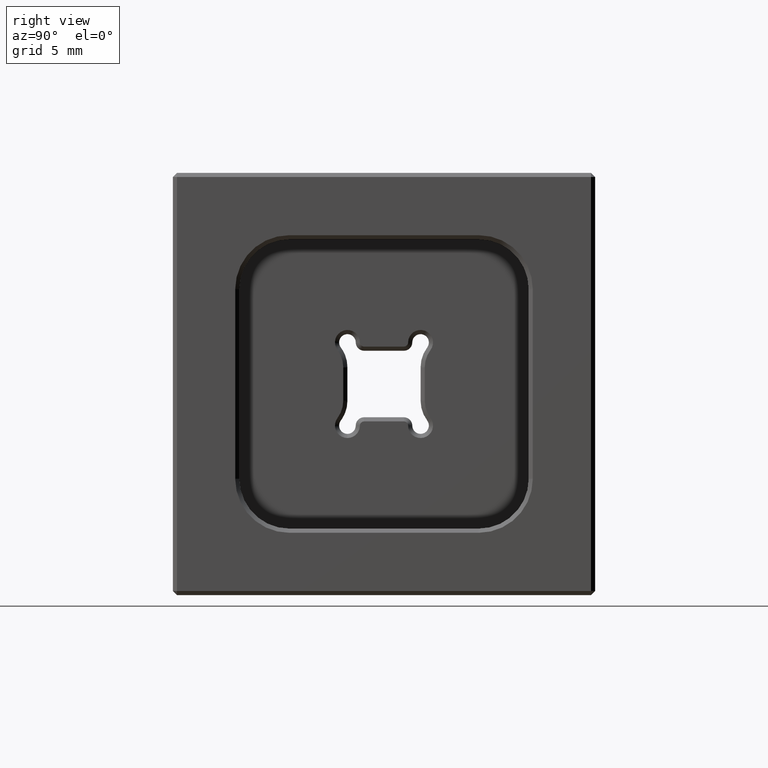
[diagram: clean part render]
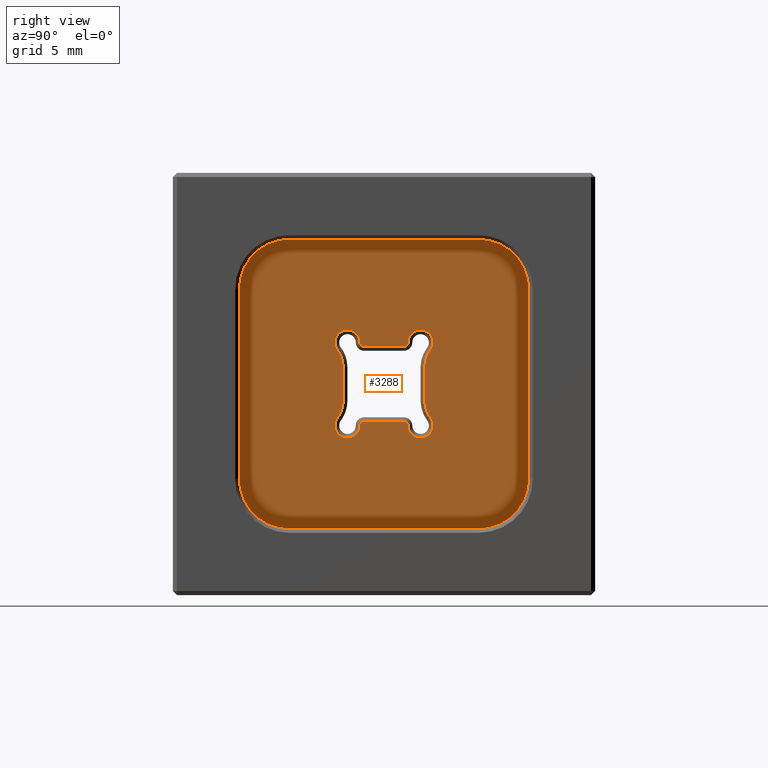
[diagram: same view with one face highlighted and labeled with its STEP entity id]
A machine part, right view. The second image highlights one B-rep face of the part: STEP entity #3288.
In plain terms, the highlighted planar face has unit normal (1, 0, 0).
Its self-contained STEP definition (entity closure, byte-faithful):
#8 = VERTEX_POINT ( 'NONE', #5404 ) ;
#50 = DIRECTION ( 'NONE',  ( -1.000000000000000000, -0.000000000000000000, -0.000000000000000000 ) ) ;
#73 = VERTEX_POINT ( 'NONE', #1613 ) ;
#93 = VERTEX_POINT ( 'NONE', #590 ) ;
#100 = EDGE_CURVE ( 'NONE', #8, #5152, #2017, .T. ) ;
#145 = DIRECTION ( 'NONE',  ( -1.000000000000000000, -0.000000000000000000, -0.000000000000000000 ) ) ;
#158 = CIRCLE ( 'NONE', #4592, 0.7500000000000002220 ) ;
#181 = AXIS2_PLACEMENT_3D ( 'NONE', #779, #4181, #1230 ) ;
#205 = CARTESIAN_POINT ( 'NONE',  ( 4.699999999999995737, -5.699999999999998401, 8.699999999999997513 ) ) ;
#209 = ORIENTED_EDGE ( 'NONE', *, *, #2404, .T. ) ;
#236 = CARTESIAN_POINT ( 'NONE',  ( 4.699999999999995737, 8.699999999999997513, 8.699999999999997513 ) ) ;
#245 = VERTEX_POINT ( 'NONE', #5748 ) ;
#330 = CARTESIAN_POINT ( 'NONE',  ( 4.699999999999995737, 1.200000000000001066, 2.249999999999999556 ) ) ;
#418 = ORIENTED_EDGE ( 'NONE', *, *, #4123, .T. ) ;
#443 = CIRCLE ( 'NONE', #2667, 1.749999999999999556 ) ;
#454 = CARTESIAN_POINT ( 'NONE',  ( 4.699999999999995737, 8.699999999999997513, -5.699999999999998401 ) ) ;
#464 = LINE ( 'NONE', #330, #4939 ) ;
#466 = VERTEX_POINT ( 'NONE', #1703 ) ;
#480 = ORIENTED_EDGE ( 'NONE', *, *, #4427, .T. ) ;
#483 = AXIS2_PLACEMENT_3D ( 'NONE', #1463, #50, #3957 ) ;
#484 = PLANE ( 'NONE',  #3834 ) ;
#488 = EDGE_CURVE ( 'NONE', #708, #4338, #443, .T. ) ;
#490 = CARTESIAN_POINT ( 'NONE',  ( 4.699999999999995737, 8.699999999999997513, 8.699999999999997513 ) ) ;
#514 = CARTESIAN_POINT ( 'NONE',  ( 4.699999999999995737, -8.699999999999997513, -5.699999999999998401 ) ) ;
#542 = CARTESIAN_POINT ( 'NONE',  ( 4.699999999999995737, 5.699999999999997513, 5.699999999999997513 ) ) ;
#557 = ORIENTED_EDGE ( 'NONE', *, *, #2823, .T. ) ;
#562 = EDGE_CURVE ( 'NONE', #4338, #1939, #6331, .T. ) ;
#569 = AXIS2_PLACEMENT_3D ( 'NONE', #4687, #2647, #5644 ) ;
#590 = CARTESIAN_POINT ( 'NONE',  ( 4.699999999999995737, -1.450000000000000844, 2.500000000000000888 ) ) ;
#602 = EDGE_CURVE ( 'NONE', #2980, #2792, #1087, .T. ) ;
#612 = VECTOR ( 'NONE', #4516, 1000.000000000000000 ) ;
#615 = VECTOR ( 'NONE', #3883, 1000.000000000000000 ) ;
#618 = DIRECTION ( 'NONE',  ( 1.000000000000000000, 0.000000000000000000, 0.000000000000000000 ) ) ;
#650 = VERTEX_POINT ( 'NONE', #6061 ) ;
#708 = VERTEX_POINT ( 'NONE', #1086 ) ;
#709 = DIRECTION ( 'NONE',  ( 1.000000000000000000, 0.000000000000000000, 0.000000000000000000 ) ) ;
#738 = ORIENTED_EDGE ( 'NONE', *, *, #2223, .T. ) ;
#757 = DIRECTION ( 'NONE',  ( 0.000000000000000000, 0.000000000000000000, -1.000000000000000000 ) ) ;
#760 = CARTESIAN_POINT ( 'NONE',  ( 4.699999999999995737, -1.200000000000001066, 2.500000000000001332 ) ) ;
#777 = EDGE_CURVE ( 'NONE', #5152, #5446, #5003, .T. ) ;
#779 = CARTESIAN_POINT ( 'NONE',  ( 4.699999999999995737, 1.200000000000001066, 2.500000000000001332 ) ) ;
#805 = ORIENTED_EDGE ( 'NONE', *, *, #562, .T. ) ;
#857 = DIRECTION ( 'NONE',  ( 1.000000000000000000, 0.000000000000000000, 0.000000000000000000 ) ) ;
#901 = CARTESIAN_POINT ( 'NONE',  ( 4.699999999999995737, -4.200000000000000178, -0.9999999999999993339 ) ) ;
#951 = DIRECTION ( 'NONE',  ( 0.000000000000000000, 0.000000000000000000, -1.000000000000000000 ) ) ;
#961 = CARTESIAN_POINT ( 'NONE',  ( 4.699999999999995737, 1.200000000000001066, -2.500000000000001332 ) ) ;
#976 = CARTESIAN_POINT ( 'NONE',  ( 4.699999999999995737, 2.450000000000001066, -0.9999999999999993339 ) ) ;
#993 = CIRCLE ( 'NONE', #3314, 3.000000000000000000 ) ;
#1086 = CARTESIAN_POINT ( 'NONE',  ( 4.699999999999995737, -2.800000000000000711, -2.049999999999999822 ) ) ;
#1087 = CIRCLE ( 'NONE', #2234, 1.749999999999999778 ) ;
#1118 = CIRCLE ( 'NONE', #5376, 3.000000000000000888 ) ;
#1168 = LINE ( 'NONE', #5829, #4244 ) ;
#1216 = DIRECTION ( 'NONE',  ( 0.000000000000000000, 0.000000000000000000, -1.000000000000000000 ) ) ;
#1230 = DIRECTION ( 'NONE',  ( 0.000000000000000000, 0.000000000000000000, -1.000000000000000000 ) ) ;
#1264 = DIRECTION ( 'NONE',  ( 0.000000000000000000, -1.156482317317871133E-15, -1.000000000000000000 ) ) ;
#1332 = VERTEX_POINT ( 'NONE', #3618 ) ;
#1341 = ORIENTED_EDGE ( 'NONE', *, *, #3451, .T. ) ;
#1408 = VECTOR ( 'NONE', #5269, 1000.000000000000000 ) ;
#1463 = CARTESIAN_POINT ( 'NONE',  ( 4.699999999999995737, 2.200000000000001066, -2.500000000000000000 ) ) ;
#1473 = CARTESIAN_POINT ( 'NONE',  ( 4.699999999999995737, -2.450000000000001066, 0.9999999999999991118 ) ) ;
#1481 = CARTESIAN_POINT ( 'NONE',  ( 4.699999999999995737, 0.000000000000000000, 0.000000000000000000 ) ) ;
#1492 = EDGE_CURVE ( 'NONE', #466, #5241, #6239, .T. ) ;
#1613 = CARTESIAN_POINT ( 'NONE',  ( 4.699999999999995737, 1.200000000000001066, -2.250000000000000444 ) ) ;
#1691 = ORIENTED_EDGE ( 'NONE', *, *, #3352, .T. ) ;
#1703 = CARTESIAN_POINT ( 'NONE',  ( 4.699999999999995737, -1.200000000000001066, -2.250000000000000444 ) ) ;
#1713 = CARTESIAN_POINT ( 'NONE',  ( 4.699999999999995737, 4.200000000000000178, -0.9999999999999993339 ) ) ;
#1724 = VERTEX_POINT ( 'NONE', #4430 ) ;
#1743 = CARTESIAN_POINT ( 'NONE',  ( 4.699999999999995737, 2.800000000000000711, 2.049999999999999378 ) ) ;
#1750 = DIRECTION ( 'NONE',  ( -1.000000000000000000, -0.000000000000000000, -0.000000000000000000 ) ) ;
#1862 = CARTESIAN_POINT ( 'NONE',  ( 4.699999999999995737, 2.200000000000001066, -3.250000000000000444 ) ) ;
#1882 = DIRECTION ( 'NONE',  ( 0.000000000000000000, 0.000000000000000000, -1.000000000000000000 ) ) ;
#1885 = DIRECTION ( 'NONE',  ( 0.000000000000000000, 0.000000000000000000, -1.000000000000000000 ) ) ;
#1888 = ORIENTED_EDGE ( 'NONE', *, *, #777, .T. ) ;
#1917 = AXIS2_PLACEMENT_3D ( 'NONE', #2690, #709, #4172 ) ;
#1939 = VERTEX_POINT ( 'NONE', #6084 ) ;
#1983 = DIRECTION ( 'NONE',  ( 1.000000000000000000, 0.000000000000000000, 0.000000000000000000 ) ) ;
#2017 = CIRCLE ( 'NONE', #3039, 3.000000000000000000 ) ;
#2029 = ORIENTED_EDGE ( 'NONE', *, *, #1492, .T. ) ;
#2041 = VECTOR ( 'NONE', #4918, 1000.000000000000000 ) ;
#2052 = EDGE_CURVE ( 'NONE', #1332, #2980, #158, .T. ) ;
#2147 = AXIS2_PLACEMENT_3D ( 'NONE', #3188, #145, #5607 ) ;
#2169 = CARTESIAN_POINT ( 'NONE',  ( 4.699999999999995737, 2.450000000000001066, 0.9999999999999991118 ) ) ;
#2223 = EDGE_CURVE ( 'NONE', #4332, #5901, #1118, .T. ) ;
#2234 = AXIS2_PLACEMENT_3D ( 'NONE', #2513, #3507, #4005 ) ;
#2295 = CARTESIAN_POINT ( 'NONE',  ( 4.699999999999995737, -5.699999999999998401, -5.699999999999999289 ) ) ;
#2404 = EDGE_CURVE ( 'NONE', #73, #466, #2574, .T. ) ;
#2471 = EDGE_CURVE ( 'NONE', #4198, #1724, #4183, .T. ) ;
#2512 = CARTESIAN_POINT ( 'NONE',  ( 4.699999999999995737, -2.200000000000001066, -2.500000000000000000 ) ) ;
#2513 = CARTESIAN_POINT ( 'NONE',  ( 4.699999999999995737, 4.200000000000000178, 0.9999999999999993339 ) ) ;
#2564 = DIRECTION ( 'NONE',  ( 0.000000000000000000, 0.000000000000000000, -1.000000000000000000 ) ) ;
#2571 = CIRCLE ( 'NONE', #6387, 1.749999999999999556 ) ;
#2574 = LINE ( 'NONE', #4450, #3575 ) ;
#2588 = ORIENTED_EDGE ( 'NONE', *, *, #5921, .T. ) ;
#2611 = CIRCLE ( 'NONE', #569, 1.749999999999999778 ) ;
#2627 = CARTESIAN_POINT ( 'NONE',  ( 4.699999999999995737, -1.450000000000001510, -2.500000000000000888 ) ) ;
#2647 = DIRECTION ( 'NONE',  ( 1.000000000000000000, 0.000000000000000000, 0.000000000000000000 ) ) ;
#2667 = AXIS2_PLACEMENT_3D ( 'NONE', #901, #4326, #1882 ) ;
#2690 = CARTESIAN_POINT ( 'NONE',  ( 4.699999999999995737, -1.200000000000001066, -2.500000000000001332 ) ) ;
#2742 = ORIENTED_EDGE ( 'NONE', *, *, #4472, .T. ) ;
#2761 = CARTESIAN_POINT ( 'NONE',  ( 4.699999999999995737, 2.200000000000001066, 2.500000000000000000 ) ) ;
#2792 = VERTEX_POINT ( 'NONE', #2169 ) ;
#2818 = ORIENTED_EDGE ( 'NONE', *, *, #4396, .T. ) ;
#2823 = EDGE_CURVE ( 'NONE', #5923, #93, #4510, .T. ) ;
#2849 = CARTESIAN_POINT ( 'NONE',  ( 4.699999999999995737, 2.450000000000000622, -0.9999999999999993339 ) ) ;
#2907 = ORIENTED_EDGE ( 'NONE', *, *, #602, .T. ) ;
#2908 = CARTESIAN_POINT ( 'NONE',  ( 4.699999999999995737, -2.800000000000000711, 2.049999999999999378 ) ) ;
#2934 = CARTESIAN_POINT ( 'NONE',  ( 4.699999999999995737, 2.200000000000001066, -2.500000000000000000 ) ) ;
#2960 = FACE_BOUND ( 'NONE', #3172, .T. ) ;
#2980 = VERTEX_POINT ( 'NONE', #1743 ) ;
#3039 = AXIS2_PLACEMENT_3D ( 'NONE', #542, #4016, #6024 ) ;
#3051 = CARTESIAN_POINT ( 'NONE',  ( 4.699999999999995737, 5.699999999999997513, -5.699999999999998401 ) ) ;
#3070 = CARTESIAN_POINT ( 'NONE',  ( 4.699999999999995737, 1.450000000000001732, -2.500000000000001332 ) ) ;
#3103 = EDGE_CURVE ( 'NONE', #245, #5264, #464, .T. ) ;
#3171 = EDGE_CURVE ( 'NONE', #1724, #4332, #1168, .T. ) ;
#3172 = EDGE_LOOP ( 'NONE', ( #3242, #5048, #480, #5786, #2907, #418, #2818, #3906, #2588, #1341, #209, #2029, #5109, #1691, #5017, #805, #4124, #557 ) ) ;
#3188 = CARTESIAN_POINT ( 'NONE',  ( 4.699999999999995737, -2.200000000000001066, 2.500000000000000000 ) ) ;
#3242 = ORIENTED_EDGE ( 'NONE', *, *, #6320, .T. ) ;
#3258 = EDGE_LOOP ( 'NONE', ( #2742, #4482, #5364, #738, #6283, #4182, #1888, #3841 ) ) ;
#3288 = ADVANCED_FACE ( 'NONE', ( #2960, #4562 ), #484, .T. ) ;
#3314 = AXIS2_PLACEMENT_3D ( 'NONE', #6349, #3391, #1885 ) ;
#3352 = EDGE_CURVE ( 'NONE', #4625, #708, #5713, .T. ) ;
#3391 = DIRECTION ( 'NONE',  ( 1.000000000000000000, 0.000000000000000000, 0.000000000000000000 ) ) ;
#3400 = DIRECTION ( 'NONE',  ( 0.000000000000000000, 1.000000000000000000, 0.000000000000000000 ) ) ;
#3430 = LINE ( 'NONE', #976, #2041 ) ;
#3451 = EDGE_CURVE ( 'NONE', #5257, #73, #5757, .T. ) ;
#3498 = DIRECTION ( 'NONE',  ( 0.000000000000000000, 0.000000000000000000, -1.000000000000000000 ) ) ;
#3507 = DIRECTION ( 'NONE',  ( 1.000000000000000000, 0.000000000000000000, 0.000000000000000000 ) ) ;
#3528 = DIRECTION ( 'NONE',  ( -1.000000000000000000, -0.000000000000000000, -0.000000000000000000 ) ) ;
#3575 = VECTOR ( 'NONE', #5470, 1000.000000000000000 ) ;
#3582 = VERTEX_POINT ( 'NONE', #2849 ) ;
#3618 = CARTESIAN_POINT ( 'NONE',  ( 4.699999999999995737, 1.450000000000000844, 2.500000000000000888 ) ) ;
#3692 = CARTESIAN_POINT ( 'NONE',  ( 4.699999999999995737, -2.200000000000001066, -2.500000000000000000 ) ) ;
#3723 = EDGE_CURVE ( 'NONE', #5241, #4625, #4520, .T. ) ;
#3769 = DIRECTION ( 'NONE',  ( 1.000000000000000000, 0.000000000000000000, 0.000000000000000000 ) ) ;
#3834 = AXIS2_PLACEMENT_3D ( 'NONE', #1481, #1983, #3498 ) ;
#3841 = ORIENTED_EDGE ( 'NONE', *, *, #5672, .T. ) ;
#3883 = DIRECTION ( 'NONE',  ( 0.000000000000000000, 0.000000000000000000, 1.000000000000000000 ) ) ;
#3906 = ORIENTED_EDGE ( 'NONE', *, *, #5180, .T. ) ;
#3918 = DIRECTION ( 'NONE',  ( -1.000000000000000000, -0.000000000000000000, -0.000000000000000000 ) ) ;
#3942 = CARTESIAN_POINT ( 'NONE',  ( 4.699999999999995737, -2.200000000000001066, -3.250000000000000444 ) ) ;
#3943 = VERTEX_POINT ( 'NONE', #6016 ) ;
#3957 = DIRECTION ( 'NONE',  ( 0.000000000000000000, 1.734723475976806503E-15, -1.000000000000000000 ) ) ;
#3961 = CARTESIAN_POINT ( 'NONE',  ( 4.699999999999995737, -2.450000000000000622, -0.9999999999999993339 ) ) ;
#4005 = DIRECTION ( 'NONE',  ( 0.000000000000000000, 0.000000000000000000, -1.000000000000000000 ) ) ;
#4016 = DIRECTION ( 'NONE',  ( 1.000000000000000000, 0.000000000000000000, 0.000000000000000000 ) ) ;
#4123 = EDGE_CURVE ( 'NONE', #2792, #3582, #3430, .T. ) ;
#4124 = ORIENTED_EDGE ( 'NONE', *, *, #5371, .T. ) ;
#4164 = DIRECTION ( 'NONE',  ( 1.000000000000000000, 0.000000000000000000, 0.000000000000000000 ) ) ;
#4172 = DIRECTION ( 'NONE',  ( 0.000000000000000000, 0.000000000000000000, -1.000000000000000000 ) ) ;
#4181 = DIRECTION ( 'NONE',  ( 1.000000000000000000, 0.000000000000000000, 0.000000000000000000 ) ) ;
#4182 = ORIENTED_EDGE ( 'NONE', *, *, #100, .T. ) ;
#4183 = CIRCLE ( 'NONE', #5327, 3.000000000000000000 ) ;
#4198 = VERTEX_POINT ( 'NONE', #514 ) ;
#4236 = DIRECTION ( 'NONE',  ( 0.000000000000000000, 0.000000000000000000, -1.000000000000000000 ) ) ;
#4244 = VECTOR ( 'NONE', #3400, 1000.000000000000000 ) ;
#4260 = AXIS2_PLACEMENT_3D ( 'NONE', #961, #6379, #5369 ) ;
#4326 = DIRECTION ( 'NONE',  ( 1.000000000000000000, 0.000000000000000000, 0.000000000000000000 ) ) ;
#4332 = VERTEX_POINT ( 'NONE', #5722 ) ;
#4338 = VERTEX_POINT ( 'NONE', #3961 ) ;
#4396 = EDGE_CURVE ( 'NONE', #3582, #650, #2571, .T. ) ;
#4427 = EDGE_CURVE ( 'NONE', #5264, #1332, #5344, .T. ) ;
#4430 = CARTESIAN_POINT ( 'NONE',  ( 4.699999999999995737, -5.699999999999998401, -8.699999999999999289 ) ) ;
#4450 = CARTESIAN_POINT ( 'NONE',  ( 4.699999999999995737, -1.200000000000001066, -2.250000000000000444 ) ) ;
#4472 = EDGE_CURVE ( 'NONE', #3943, #4198, #5505, .T. ) ;
#4482 = ORIENTED_EDGE ( 'NONE', *, *, #2471, .T. ) ;
#4510 = CIRCLE ( 'NONE', #2147, 0.7500000000000002220 ) ;
#4516 = DIRECTION ( 'NONE',  ( 0.000000000000000000, 0.000000000000000000, 1.000000000000000000 ) ) ;
#4520 = CIRCLE ( 'NONE', #5201, 0.7500000000000002220 ) ;
#4521 = DIRECTION ( 'NONE',  ( 0.000000000000000000, 0.000000000000000000, -1.000000000000000000 ) ) ;
#4551 = VECTOR ( 'NONE', #5652, 1000.000000000000000 ) ;
#4562 = FACE_OUTER_BOUND ( 'NONE', #3258, .T. ) ;
#4592 = AXIS2_PLACEMENT_3D ( 'NONE', #2761, #1750, #4236 ) ;
#4625 = VERTEX_POINT ( 'NONE', #3942 ) ;
#4687 = CARTESIAN_POINT ( 'NONE',  ( 4.699999999999995737, -4.200000000000000178, 0.9999999999999993339 ) ) ;
#4706 = AXIS2_PLACEMENT_3D ( 'NONE', #2934, #3918, #951 ) ;
#4708 = EDGE_CURVE ( 'NONE', #5901, #8, #5477, .T. ) ;
#4862 = CARTESIAN_POINT ( 'NONE',  ( 4.699999999999995737, -8.699999999999997513, 8.699999999999997513 ) ) ;
#4918 = DIRECTION ( 'NONE',  ( 0.000000000000000000, 0.000000000000000000, -1.000000000000000000 ) ) ;
#4939 = VECTOR ( 'NONE', #6174, 1000.000000000000000 ) ;
#4981 = CIRCLE ( 'NONE', #4706, 0.7500000000000002220 ) ;
#5003 = LINE ( 'NONE', #236, #4551 ) ;
#5017 = ORIENTED_EDGE ( 'NONE', *, *, #488, .T. ) ;
#5048 = ORIENTED_EDGE ( 'NONE', *, *, #3103, .T. ) ;
#5109 = ORIENTED_EDGE ( 'NONE', *, *, #3723, .T. ) ;
#5138 = CIRCLE ( 'NONE', #483, 0.7500000000000002220 ) ;
#5152 = VERTEX_POINT ( 'NONE', #5976 ) ;
#5180 = EDGE_CURVE ( 'NONE', #650, #5893, #5138, .T. ) ;
#5201 = AXIS2_PLACEMENT_3D ( 'NONE', #3692, #6117, #1264 ) ;
#5231 = DIRECTION ( 'NONE',  ( 0.000000000000000000, 0.000000000000000000, -1.000000000000000000 ) ) ;
#5241 = VERTEX_POINT ( 'NONE', #2627 ) ;
#5257 = VERTEX_POINT ( 'NONE', #3070 ) ;
#5264 = VERTEX_POINT ( 'NONE', #5562 ) ;
#5269 = DIRECTION ( 'NONE',  ( 0.000000000000000000, 0.000000000000000000, -1.000000000000000000 ) ) ;
#5327 = AXIS2_PLACEMENT_3D ( 'NONE', #2295, #857, #5231 ) ;
#5344 = CIRCLE ( 'NONE', #181, 0.2500000000000002220 ) ;
#5364 = ORIENTED_EDGE ( 'NONE', *, *, #3171, .T. ) ;
#5369 = DIRECTION ( 'NONE',  ( 0.000000000000000000, 0.000000000000000000, -1.000000000000000000 ) ) ;
#5371 = EDGE_CURVE ( 'NONE', #1939, #5923, #2611, .T. ) ;
#5376 = AXIS2_PLACEMENT_3D ( 'NONE', #3051, #618, #2564 ) ;
#5404 = CARTESIAN_POINT ( 'NONE',  ( 4.699999999999995737, 8.699999999999997513, 5.699999999999997513 ) ) ;
#5409 = AXIS2_PLACEMENT_3D ( 'NONE', #760, #4164, #1216 ) ;
#5446 = VERTEX_POINT ( 'NONE', #205 ) ;
#5470 = DIRECTION ( 'NONE',  ( 0.000000000000000000, -1.000000000000000000, 0.000000000000000000 ) ) ;
#5477 = LINE ( 'NONE', #490, #612 ) ;
#5505 = LINE ( 'NONE', #4862, #1408 ) ;
#5562 = CARTESIAN_POINT ( 'NONE',  ( 4.699999999999995737, 1.200000000000001066, 2.250000000000001332 ) ) ;
#5607 = DIRECTION ( 'NONE',  ( 0.000000000000000000, 0.000000000000000000, -1.000000000000000000 ) ) ;
#5644 = DIRECTION ( 'NONE',  ( 0.000000000000000000, 0.000000000000000000, -1.000000000000000000 ) ) ;
#5652 = DIRECTION ( 'NONE',  ( 0.000000000000000000, -1.000000000000000000, 0.000000000000000000 ) ) ;
#5672 = EDGE_CURVE ( 'NONE', #5446, #3943, #993, .T. ) ;
#5713 = CIRCLE ( 'NONE', #5714, 0.7500000000000002220 ) ;
#5714 = AXIS2_PLACEMENT_3D ( 'NONE', #2512, #3528, #4521 ) ;
#5722 = CARTESIAN_POINT ( 'NONE',  ( 4.699999999999995737, 5.699999999999997513, -8.699999999999999289 ) ) ;
#5748 = CARTESIAN_POINT ( 'NONE',  ( 4.699999999999995737, -1.200000000000001066, 2.250000000000001332 ) ) ;
#5757 = CIRCLE ( 'NONE', #4260, 0.2500000000000006661 ) ;
#5786 = ORIENTED_EDGE ( 'NONE', *, *, #2052, .T. ) ;
#5829 = CARTESIAN_POINT ( 'NONE',  ( 4.699999999999995737, 8.699999999999997513, -8.699999999999999289 ) ) ;
#5893 = VERTEX_POINT ( 'NONE', #1862 ) ;
#5901 = VERTEX_POINT ( 'NONE', #454 ) ;
#5921 = EDGE_CURVE ( 'NONE', #5893, #5257, #4981, .T. ) ;
#5923 = VERTEX_POINT ( 'NONE', #2908 ) ;
#5976 = CARTESIAN_POINT ( 'NONE',  ( 4.699999999999995737, 5.699999999999997513, 8.699999999999997513 ) ) ;
#6016 = CARTESIAN_POINT ( 'NONE',  ( 4.699999999999995737, -8.699999999999997513, 5.699999999999997513 ) ) ;
#6024 = DIRECTION ( 'NONE',  ( 0.000000000000000000, 0.000000000000000000, -1.000000000000000000 ) ) ;
#6061 = CARTESIAN_POINT ( 'NONE',  ( 4.699999999999995737, 2.800000000000000711, -2.049999999999999822 ) ) ;
#6084 = CARTESIAN_POINT ( 'NONE',  ( 4.699999999999995737, -2.450000000000001066, 0.9999999999999991118 ) ) ;
#6117 = DIRECTION ( 'NONE',  ( -1.000000000000000000, -0.000000000000000000, -0.000000000000000000 ) ) ;
#6174 = DIRECTION ( 'NONE',  ( 0.000000000000000000, 1.000000000000000000, 0.000000000000000000 ) ) ;
#6239 = CIRCLE ( 'NONE', #1917, 0.2500000000000002220 ) ;
#6283 = ORIENTED_EDGE ( 'NONE', *, *, #4708, .T. ) ;
#6316 = CIRCLE ( 'NONE', #5409, 0.2500000000000002220 ) ;
#6320 = EDGE_CURVE ( 'NONE', #93, #245, #6316, .T. ) ;
#6331 = LINE ( 'NONE', #1473, #615 ) ;
#6349 = CARTESIAN_POINT ( 'NONE',  ( 4.699999999999995737, -5.699999999999997513, 5.699999999999997513 ) ) ;
#6379 = DIRECTION ( 'NONE',  ( 1.000000000000000000, 0.000000000000000000, 0.000000000000000000 ) ) ;
#6387 = AXIS2_PLACEMENT_3D ( 'NONE', #1713, #3769, #757 ) ;